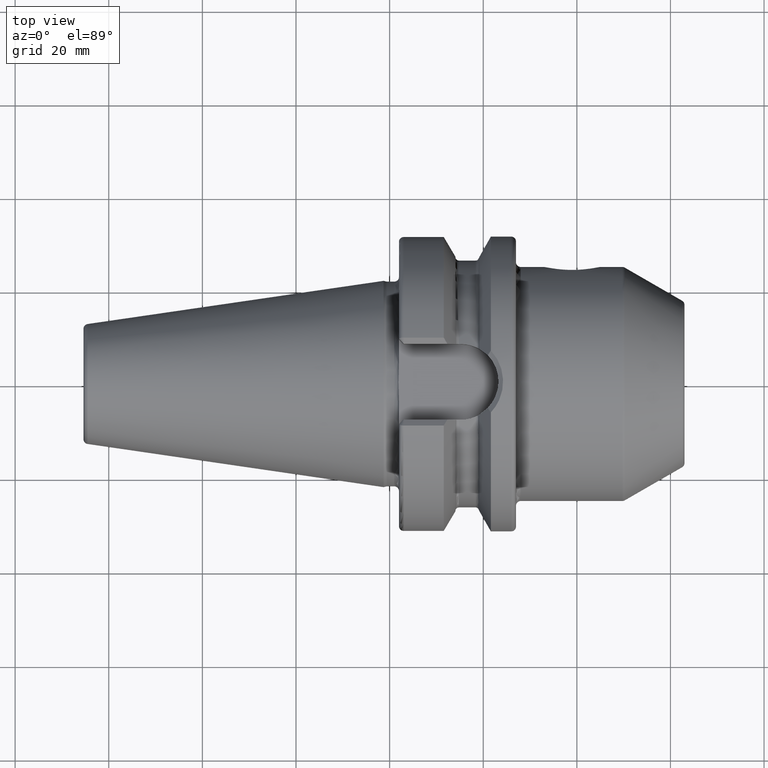
[diagram: clean part render]
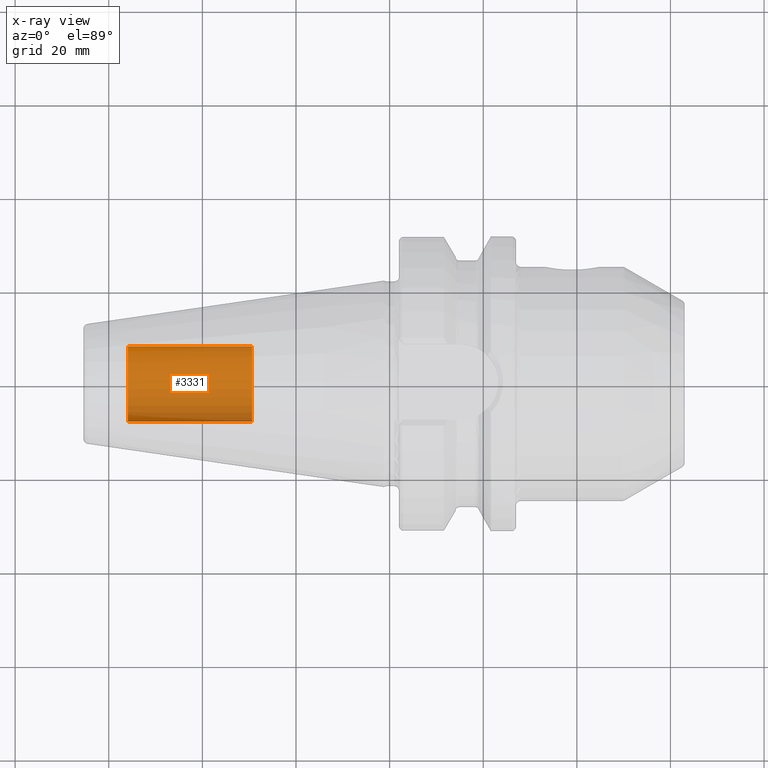
[diagram: x-ray — body ghosted, one internal face saturated and labeled with its STEP entity id]
A machine part, top view, then the same camera in x-ray: the body is ghosted and one INTERNAL B-rep face — a face not visible from any outside direction — is saturated and labeled: STEP entity #3331.
In plain terms, the highlighted cylindrical surface (partial cylindrical patch) has radius 8.0028 mm, axis along (1, 0, 0).
Its self-contained STEP definition (entity closure, byte-faithful):
#3266=CARTESIAN_POINT('',(-5.595E1,0.E0,0.E0));
#3267=DIRECTION('',(-1.E0,0.E0,0.E0));
#3268=DIRECTION('',(0.E0,1.E0,0.E0));
#3269=AXIS2_PLACEMENT_3D('',#3266,#3267,#3268);
#3271=DIRECTION('',(1.E0,0.E0,0.E0));
#3272=VECTOR('',#3271,2.655E1);
#3273=CARTESIAN_POINT('',(-5.595E1,-8.00275E0,0.E0));
#3274=LINE('',#3273,#3272);
#3280=DIRECTION('',(1.E0,0.E0,0.E0));
#3281=VECTOR('',#3280,2.655E1);
#3282=CARTESIAN_POINT('',(-5.595E1,8.00275E0,0.E0));
#3283=LINE('',#3282,#3281);
#3289=CARTESIAN_POINT('',(-2.94E1,0.E0,0.E0));
#3290=DIRECTION('',(1.E0,0.E0,0.E0));
#3291=DIRECTION('',(0.E0,-1.E0,0.E0));
#3292=AXIS2_PLACEMENT_3D('',#3289,#3290,#3291);
#3304=CARTESIAN_POINT('',(-5.595E1,8.00275E0,0.E0));
#3305=CARTESIAN_POINT('',(-5.595E1,-8.00275E0,0.E0));
#3306=VERTEX_POINT('',#3304);
#3307=VERTEX_POINT('',#3305);
#3308=CARTESIAN_POINT('',(-2.94E1,8.00275E0,0.E0));
#3309=CARTESIAN_POINT('',(-2.94E1,-8.00275E0,0.E0));
#3310=VERTEX_POINT('',#3308);
#3311=VERTEX_POINT('',#3309);
#3316=CARTESIAN_POINT('',(-5.595E1,0.E0,0.E0));
#3317=DIRECTION('',(1.E0,0.E0,0.E0));
#3318=DIRECTION('',(0.E0,1.E0,0.E0));
#3319=AXIS2_PLACEMENT_3D('',#3316,#3317,#3318);
#3320=CYLINDRICAL_SURFACE('',#3319,8.00275E0);
#3322=ORIENTED_EDGE('',*,*,#3321,.T.);
#3324=ORIENTED_EDGE('',*,*,#3323,.T.);
#3326=ORIENTED_EDGE('',*,*,#3325,.T.);
#3328=ORIENTED_EDGE('',*,*,#3327,.F.);
#3329=EDGE_LOOP('',(#3322,#3324,#3326,#3328));
#3330=FACE_OUTER_BOUND('',#3329,.F.);
#3331=ADVANCED_FACE('',(#3330),#3320,.T.);
#3270=CIRCLE('',#3269,8.00275E0);
#3293=CIRCLE('',#3292,8.00275E0);
#3321=EDGE_CURVE('',#3306,#3307,#3270,.T.);
#3323=EDGE_CURVE('',#3307,#3311,#3274,.T.);
#3325=EDGE_CURVE('',#3311,#3310,#3293,.T.);
#3327=EDGE_CURVE('',#3306,#3310,#3283,.T.);